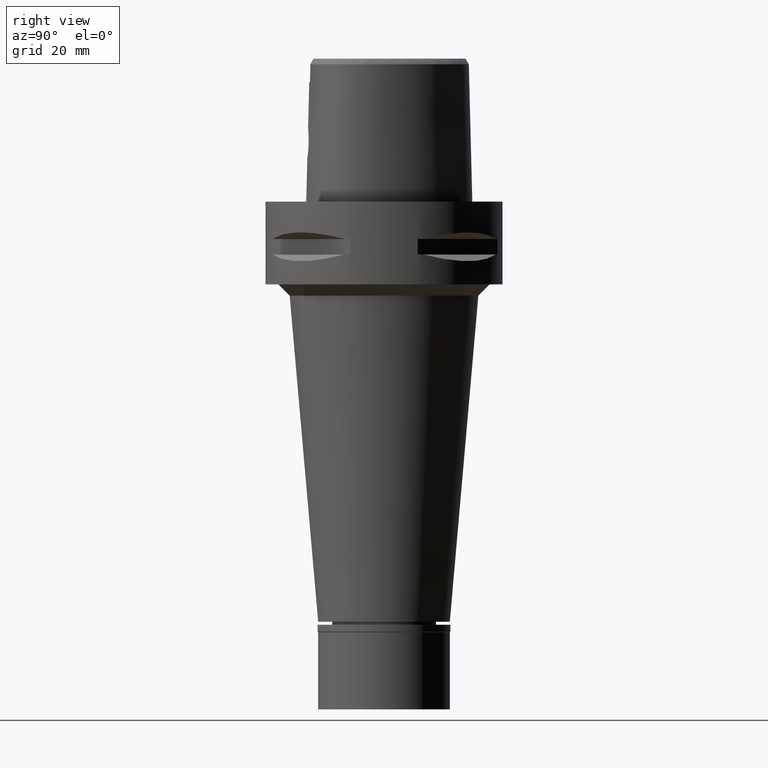
[diagram: clean part render]
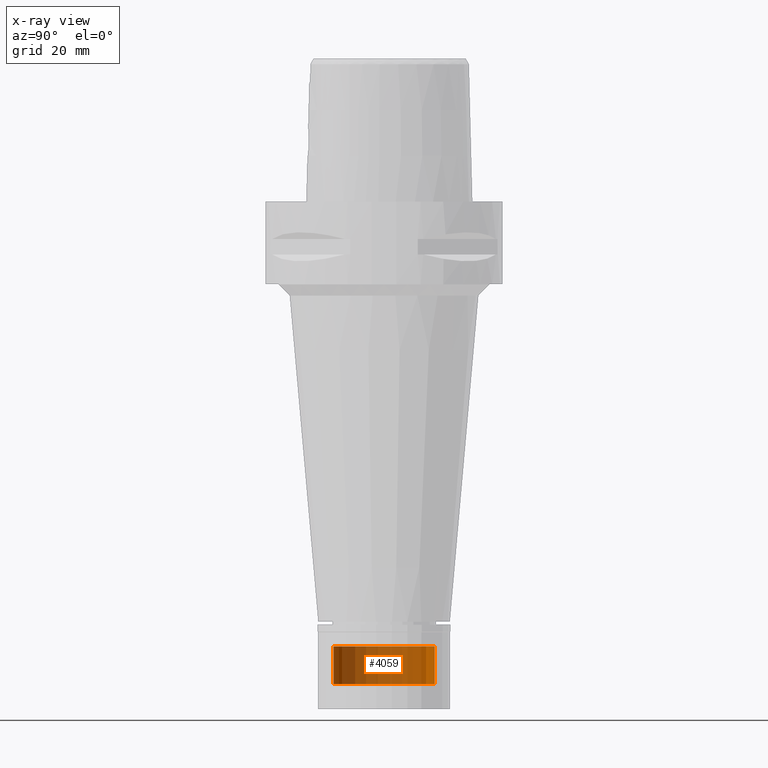
[diagram: x-ray — body ghosted, one internal face saturated and labeled with its STEP entity id]
A machine part, right view, then the same camera in x-ray: the body is ghosted and one INTERNAL B-rep face — a face not visible from any outside direction — is saturated and labeled: STEP entity #4059.
In plain terms, the highlighted cylindrical surface (partial cylindrical patch) has radius 13.5 mm, axis along (0, 0, -1).
Its self-contained STEP definition (entity closure, byte-faithful):
#428 = EDGE_CURVE ( 'NONE', #1764, #2139, #2501, .T. ) ;
#1029 = DIRECTION ( 'NONE',  ( 0.0000000000000000000, 0.0000000000000000000, 1.000000000000000000 ) ) ;
#1363 = DIRECTION ( 'NONE',  ( 0.0000000000000000000, -1.000000000000000000, 0.0000000000000000000 ) ) ;
#1379 = EDGE_CURVE ( 'NONE', #3544, #2139, #1956, .T. ) ;
#1397 = AXIS2_PLACEMENT_3D ( 'NONE', #3677, #1029, #2932 ) ;
#1587 = FACE_OUTER_BOUND ( 'NONE', #3196, .T. ) ;
#1678 = CARTESIAN_POINT ( 'NONE',  ( 0.0000000000000000000, 13.50000000000000000, -118.2999999999999972 ) ) ;
#1764 = VERTEX_POINT ( 'NONE', #3950 ) ;
#1868 = VECTOR ( 'NONE', #2770, 1000.000000000000000 ) ;
#1956 = CIRCLE ( 'NONE', #1397, 13.50000000000000000 ) ;
#2139 = VERTEX_POINT ( 'NONE', #3359 ) ;
#2501 = LINE ( 'NONE', #3646, #4154 ) ;
#2541 = CARTESIAN_POINT ( 'NONE',  ( 0.0000000000000000000, 13.50000000000000000, -128.3000000000000114 ) ) ;
#2733 = CYLINDRICAL_SURFACE ( 'NONE', #4166, 13.50000000000000000 ) ;
#2770 = DIRECTION ( 'NONE',  ( 0.0000000000000000000, 0.0000000000000000000, -1.000000000000000000 ) ) ;
#2848 = ORIENTED_EDGE ( 'NONE', *, *, #3198, .T. ) ;
#2863 = CIRCLE ( 'NONE', #4905, 13.50000000000000000 ) ;
#2881 = LINE ( 'NONE', #3233, #1868 ) ;
#2932 = DIRECTION ( 'NONE',  ( 0.0000000000000000000, 1.000000000000000000, 0.0000000000000000000 ) ) ;
#3196 = EDGE_LOOP ( 'NONE', ( #3983, #4543, #3419, #2848 ) ) ;
#3198 = EDGE_CURVE ( 'NONE', #4781, #3544, #2881, .T. ) ;
#3233 = CARTESIAN_POINT ( 'NONE',  ( 0.0000000000000000000, 13.50000000000000000, -118.2999999999999972 ) ) ;
#3273 = CARTESIAN_POINT ( 'NONE',  ( 0.0000000000000000000, 0.0000000000000000000, -118.2999999999999972 ) ) ;
#3359 = CARTESIAN_POINT ( 'NONE',  ( 0.0000000000000000000, -13.50000000000000000, -128.3000000000000114 ) ) ;
#3419 = ORIENTED_EDGE ( 'NONE', *, *, #4433, .T. ) ;
#3544 = VERTEX_POINT ( 'NONE', #2541 ) ;
#3646 = CARTESIAN_POINT ( 'NONE',  ( 0.0000000000000000000, -13.50000000000000000, -118.2999999999999972 ) ) ;
#3677 = CARTESIAN_POINT ( 'NONE',  ( 0.0000000000000000000, 0.0000000000000000000, -128.3000000000000114 ) ) ;
#3950 = CARTESIAN_POINT ( 'NONE',  ( 0.0000000000000000000, -13.50000000000000000, -118.2999999999999972 ) ) ;
#3960 = DIRECTION ( 'NONE',  ( 0.0000000000000000000, 0.0000000000000000000, -1.000000000000000000 ) ) ;
#3983 = ORIENTED_EDGE ( 'NONE', *, *, #1379, .T. ) ;
#4059 = ADVANCED_FACE ( 'NONE', ( #1587 ), #2733, .T. ) ;
#4154 = VECTOR ( 'NONE', #4339, 1000.000000000000000 ) ;
#4166 = AXIS2_PLACEMENT_3D ( 'NONE', #4726, #3960, #4292 ) ;
#4292 = DIRECTION ( 'NONE',  ( 0.0000000000000000000, -1.000000000000000000, 0.0000000000000000000 ) ) ;
#4339 = DIRECTION ( 'NONE',  ( 0.0000000000000000000, 0.0000000000000000000, -1.000000000000000000 ) ) ;
#4433 = EDGE_CURVE ( 'NONE', #1764, #4781, #2863, .T. ) ;
#4543 = ORIENTED_EDGE ( 'NONE', *, *, #428, .F. ) ;
#4726 = CARTESIAN_POINT ( 'NONE',  ( 0.0000000000000000000, 0.0000000000000000000, 6.415000000000000036 ) ) ;
#4781 = VERTEX_POINT ( 'NONE', #1678 ) ;
#4861 = DIRECTION ( 'NONE',  ( 0.0000000000000000000, 0.0000000000000000000, -1.000000000000000000 ) ) ;
#4905 = AXIS2_PLACEMENT_3D ( 'NONE', #3273, #4861, #1363 ) ;